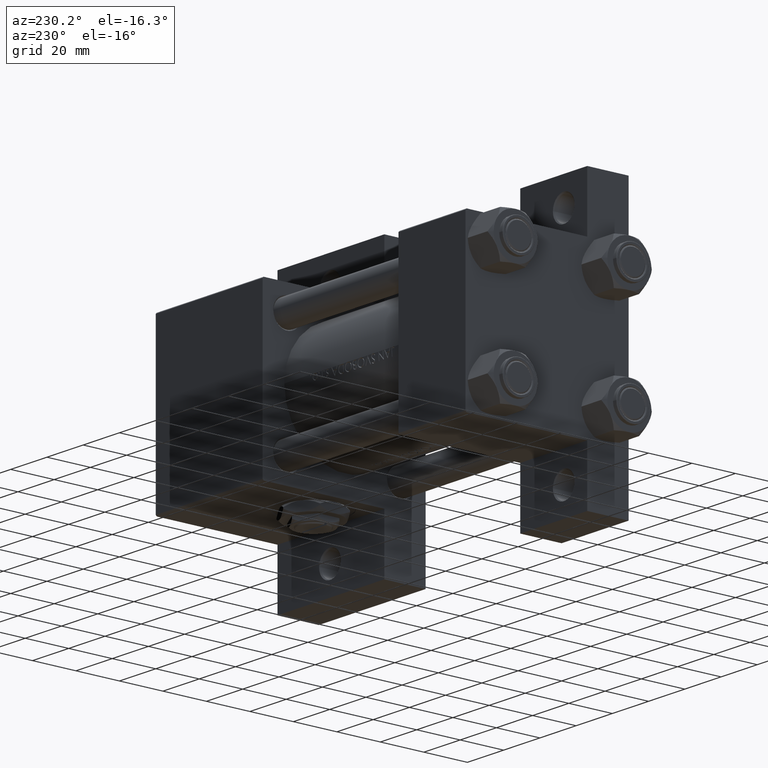
[diagram: clean part render]
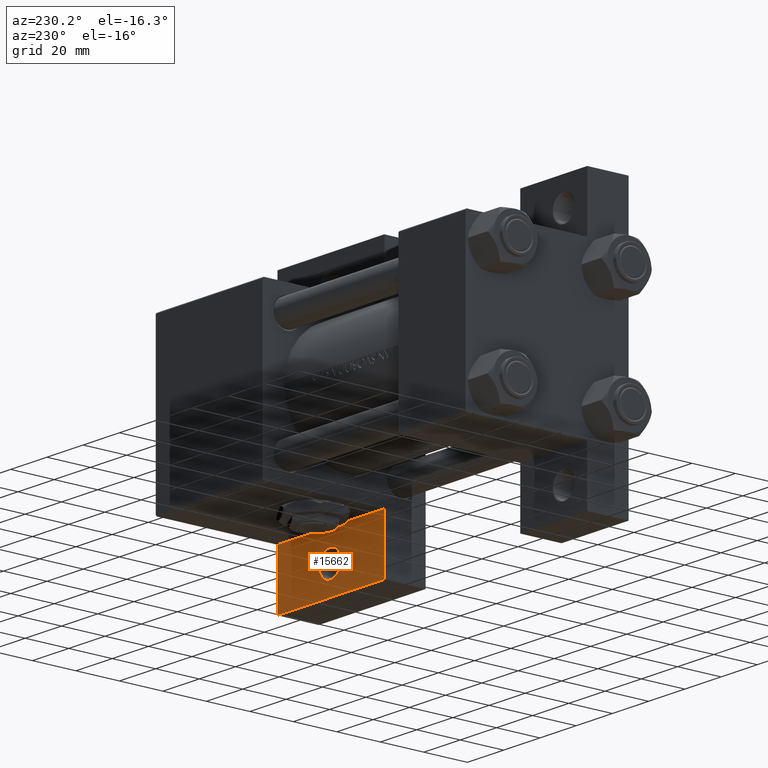
[diagram: same view with one face highlighted and labeled with its STEP entity id]
A machine part, auxiliary view. The second image highlights one B-rep face of the part: STEP entity #15662.
In plain terms, the highlighted planar face has unit normal (0, 1, 0).
Its self-contained STEP definition (entity closure, byte-faithful):
#436 = ORIENTED_EDGE ( 'NONE', *, *, #9046, .F. ) ;
#468 = VECTOR ( 'NONE', #37561, 1000.000000000000000 ) ;
#2348 = DIRECTION ( 'NONE',  ( -1.000000000000000000, 3.528251137579946599E-16, -0.000000000000000000 ) ) ;
#2385 = CARTESIAN_POINT ( 'NONE',  ( 0.000000000000000000, 0.000000000000000000, -18.50000000000000000 ) ) ;
#2838 = DIRECTION ( 'NONE',  ( -0.000000000000000000, -0.000000000000000000, -1.000000000000000000 ) ) ;
#3746 = CARTESIAN_POINT ( 'NONE',  ( 136.0004999999999882, 50.99999999999999289, -18.50000000000000000 ) ) ;
#5639 = FACE_OUTER_BOUND ( 'NONE', #37017, .T. ) ;
#6816 = CARTESIAN_POINT ( 'NONE',  ( 142.0000000000000284, 50.99999999999999289, -18.50000000000000000 ) ) ;
#6830 = VECTOR ( 'NONE', #2348, 1000.000000000000000 ) ;
#6947 = ORIENTED_EDGE ( 'NONE', *, *, #48055, .T. ) ;
#7184 = LINE ( 'NONE', #38053, #468 ) ;
#7602 = CARTESIAN_POINT ( 'NONE',  ( 111.9999999999999858, 63.50000000000000000, -18.50000000000000000 ) ) ;
#7716 = EDGE_CURVE ( 'NONE', #44340, #36656, #47672, .T. ) ;
#9046 = EDGE_CURVE ( 'NONE', #37087, #23039, #42317, .T. ) ;
#9257 = ORIENTED_EDGE ( 'NONE', *, *, #7716, .F. ) ;
#9871 = DIRECTION ( 'NONE',  ( 0.000000000000000000, 0.000000000000000000, 1.000000000000000000 ) ) ;
#10091 = CARTESIAN_POINT ( 'NONE',  ( 147.9995000000000402, 50.99999999999999289, -18.50000000000000000 ) ) ;
#10873 = VECTOR ( 'NONE', #21767, 1000.000000000000000 ) ;
#11618 = CIRCLE ( 'NONE', #24361, 5.999500000000018929 ) ;
#15662 = ADVANCED_FACE ( 'NONE', ( #36492, #5639 ), #43977, .T. ) ;
#17351 = AXIS2_PLACEMENT_3D ( 'NONE', #2385, #9871, #32270 ) ;
#19330 = VERTEX_POINT ( 'NONE', #10091 ) ;
#19534 = LINE ( 'NONE', #38202, #37595 ) ;
#19722 = EDGE_LOOP ( 'NONE', ( #38895, #6947 ) ) ;
#20406 = CARTESIAN_POINT ( 'NONE',  ( 111.9999999999999858, 63.50000000000000000, -18.50000000000000000 ) ) ;
#21767 = DIRECTION ( 'NONE',  ( 1.000000000000000000, 0.000000000000000000, 0.000000000000000000 ) ) ;
#22438 = ORIENTED_EDGE ( 'NONE', *, *, #35162, .F. ) ;
#22866 = CARTESIAN_POINT ( 'NONE',  ( 142.0000000000000284, 50.99999999999999289, -18.50000000000000000 ) ) ;
#23039 = VERTEX_POINT ( 'NONE', #33783 ) ;
#24361 = AXIS2_PLACEMENT_3D ( 'NONE', #22866, #33574, #41308 ) ;
#28413 = CIRCLE ( 'NONE', #39531, 5.999500000000018929 ) ;
#30272 = VERTEX_POINT ( 'NONE', #3746 ) ;
#32270 = DIRECTION ( 'NONE',  ( 1.000000000000000000, 0.000000000000000000, -0.000000000000000000 ) ) ;
#32626 = ORIENTED_EDGE ( 'NONE', *, *, #46402, .F. ) ;
#33574 = DIRECTION ( 'NONE',  ( -0.000000000000000000, -0.000000000000000000, -1.000000000000000000 ) ) ;
#33699 = DIRECTION ( 'NONE',  ( 1.000000000000000000, 0.000000000000000000, 0.000000000000000000 ) ) ;
#33783 = CARTESIAN_POINT ( 'NONE',  ( 171.0000000000000000, 63.50000000000000000, -18.50000000000000000 ) ) ;
#35162 = EDGE_CURVE ( 'NONE', #36656, #37087, #19534, .T. ) ;
#36492 = FACE_BOUND ( 'NONE', #19722, .T. ) ;
#36656 = VERTEX_POINT ( 'NONE', #43634 ) ;
#37017 = EDGE_LOOP ( 'NONE', ( #22438, #9257, #32626, #436 ) ) ;
#37087 = VERTEX_POINT ( 'NONE', #7602 ) ;
#37561 = DIRECTION ( 'NONE',  ( -1.067522139062649685E-15, -1.000000000000000000, 0.000000000000000000 ) ) ;
#37595 = VECTOR ( 'NONE', #49155, 1000.000000000000000 ) ;
#38053 = CARTESIAN_POINT ( 'NONE',  ( 171.0000000000000000, 63.50000000000000000, -18.50000000000000000 ) ) ;
#38202 = CARTESIAN_POINT ( 'NONE',  ( 111.9999999999999858, 63.50000000000000000, -18.50000000000000000 ) ) ;
#38895 = ORIENTED_EDGE ( 'NONE', *, *, #46399, .T. ) ;
#39531 = AXIS2_PLACEMENT_3D ( 'NONE', #6816, #2838, #33699 ) ;
#41308 = DIRECTION ( 'NONE',  ( 1.000000000000000000, 0.000000000000000000, 0.000000000000000000 ) ) ;
#42043 = CARTESIAN_POINT ( 'NONE',  ( 170.9999999999999716, 37.49999999999997868, -18.50000000000000000 ) ) ;
#42317 = LINE ( 'NONE', #20406, #10873 ) ;
#43634 = CARTESIAN_POINT ( 'NONE',  ( 111.9999999999999858, 37.50000000000000000, -18.50000000000000355 ) ) ;
#43935 = CARTESIAN_POINT ( 'NONE',  ( 111.9999999999999858, 37.50000000000000000, -18.50000000000000000 ) ) ;
#43977 = PLANE ( 'NONE',  #17351 ) ;
#44340 = VERTEX_POINT ( 'NONE', #42043 ) ;
#46399 = EDGE_CURVE ( 'NONE', #19330, #30272, #11618, .T. ) ;
#46402 = EDGE_CURVE ( 'NONE', #23039, #44340, #7184, .T. ) ;
#47672 = LINE ( 'NONE', #43935, #6830 ) ;
#48055 = EDGE_CURVE ( 'NONE', #30272, #19330, #28413, .T. ) ;
#49155 = DIRECTION ( 'NONE',  ( -0.000000000000000000, 1.000000000000000000, -0.000000000000000000 ) ) ;